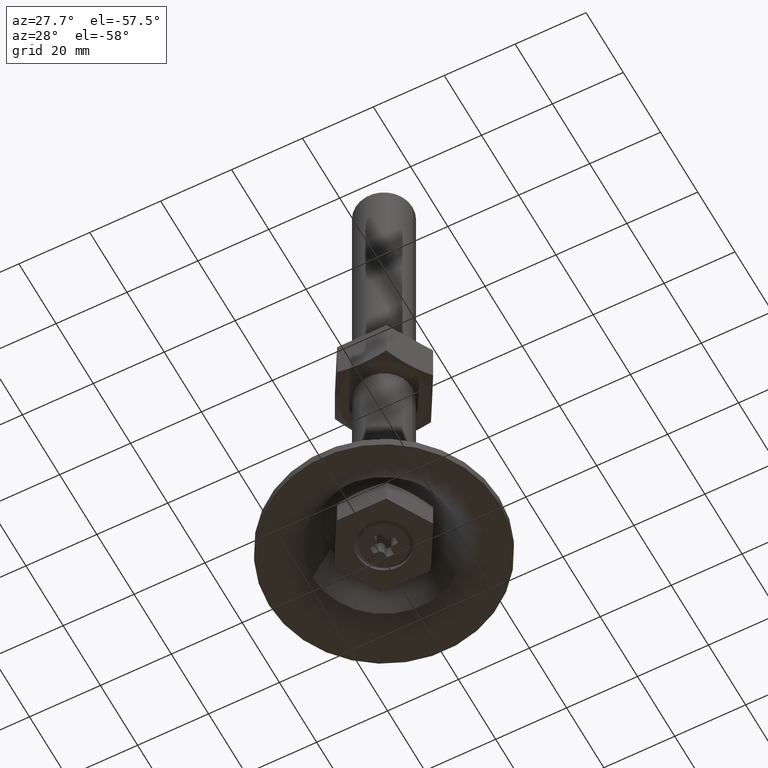
[diagram: clean part render]
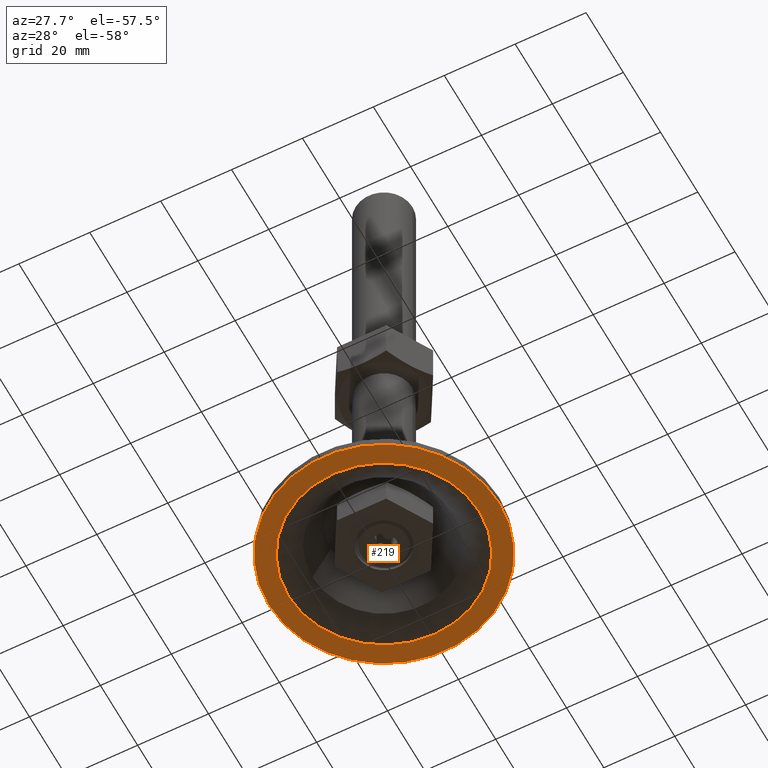
[diagram: same view with one face highlighted and labeled with its STEP entity id]
A machine part, auxiliary view. The second image highlights one B-rep face of the part: STEP entity #219.
In plain terms, the highlighted planar face has unit normal (0, 0, 1).
Its self-contained STEP definition (entity closure, byte-faithful):
#219=ADVANCED_FACE('',(#948,#949),#947,.F.);
#947=PLANE('',#1584);
#948=FACE_OUTER_BOUND('',#1585,.T.);
#949=FACE_BOUND('',#1586,.T.);
#1581=CARTESIAN_POINT('',(-4.22500000001E+01,-6.62916512460E+01,-2.79999999999E+01));
#1582=DIRECTION('',(0.00000000000E+00,0.00000000000E+00,1.00000000000E+00));
#1583=DIRECTION('',(1.00000000000E+00,0.00000000000E+00,-0.00000000000E+00));
#1584=AXIS2_PLACEMENT_3D('',#1581,#1582,#1583);
#1585=EDGE_LOOP('',(#2213,#2214));
#1586=EDGE_LOOP('',(#2215,#2216));
#2213=ORIENTED_EDGE('',*,*,#2461,.T.);
#2214=ORIENTED_EDGE('',*,*,#2462,.T.);
#2215=ORIENTED_EDGE('',*,*,#2463,.F.);
#2216=ORIENTED_EDGE('',*,*,#2464,.F.);
#2461=EDGE_CURVE('',#3617,#3618,#3619,.T.);
#2462=EDGE_CURVE('',#3618,#3617,#3625,.T.);
#2463=EDGE_CURVE('',#3631,#3632,#3633,.T.);
#2464=EDGE_CURVE('',#3632,#3631,#3639,.T.);
#3617=VERTEX_POINT('',#4677);
#3618=VERTEX_POINT('',#4678);
#3619=CIRCLE('',#4682,3.25000000000E+01);
#3625=CIRCLE('',#4686,3.25000000000E+01);
#3631=VERTEX_POINT('',#4687);
#3632=VERTEX_POINT('',#4688);
#3633=CIRCLE('',#4692,2.69551277699E+01);
#3639=CIRCLE('',#4696,2.69551277699E+01);
#4677=CARTESIAN_POINT('',(-3.25000000001E+01,0.00000000000E+00,-2.79999999999E+01));
#4678=CARTESIAN_POINT('',(3.25000000000E+01,1.18423789293E-15,-2.79999999999E+01));
#4679=CARTESIAN_POINT('',(-3.19460013998E-11,0.00000000000E+00,-2.79999999999E+01));
#4680=DIRECTION('',(-0.00000000000E+00,0.00000000000E+00,-1.00000000000E+00));
#4681=DIRECTION('',(-1.00000000000E+00,-1.22460635382E-16,0.00000000000E+00));
#4682=AXIS2_PLACEMENT_3D('',#4679,#4680,#4681);
#4683=CARTESIAN_POINT('',(-3.19460013998E-11,0.00000000000E+00,-2.79999999999E+01));
#4684=DIRECTION('',(-0.00000000000E+00,0.00000000000E+00,-1.00000000000E+00));
#4685=DIRECTION('',(-1.00000000000E+00,-1.22460635382E-16,0.00000000000E+00));
#4686=AXIS2_PLACEMENT_3D('',#4683,#4684,#4685);
#4687=CARTESIAN_POINT('',(2.69551277699E+01,1.18423789293E-15,-2.79999999999E+01));
#4688=CARTESIAN_POINT('',(-2.69551277699E+01,0.00000000000E+00,-2.79999999999E+01));
#4689=CARTESIAN_POINT('',(-3.19460013998E-11,0.00000000000E+00,-2.79999999999E+01));
#4690=DIRECTION('',(-0.00000000000E+00,0.00000000000E+00,-1.00000000000E+00));
#4691=DIRECTION('',(-1.00000000000E+00,-1.22460635382E-16,0.00000000000E+00));
#4692=AXIS2_PLACEMENT_3D('',#4689,#4690,#4691);
#4693=CARTESIAN_POINT('',(-3.19460013998E-11,0.00000000000E+00,-2.79999999999E+01));
#4694=DIRECTION('',(-0.00000000000E+00,0.00000000000E+00,-1.00000000000E+00));
#4695=DIRECTION('',(-1.00000000000E+00,-1.22460635382E-16,0.00000000000E+00));
#4696=AXIS2_PLACEMENT_3D('',#4693,#4694,#4695);